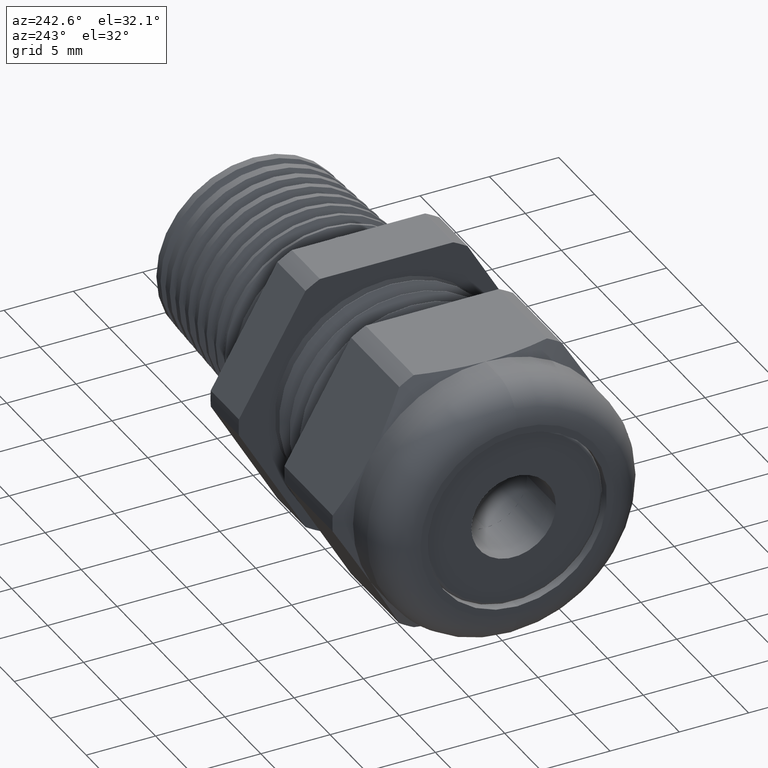
[diagram: clean part render]
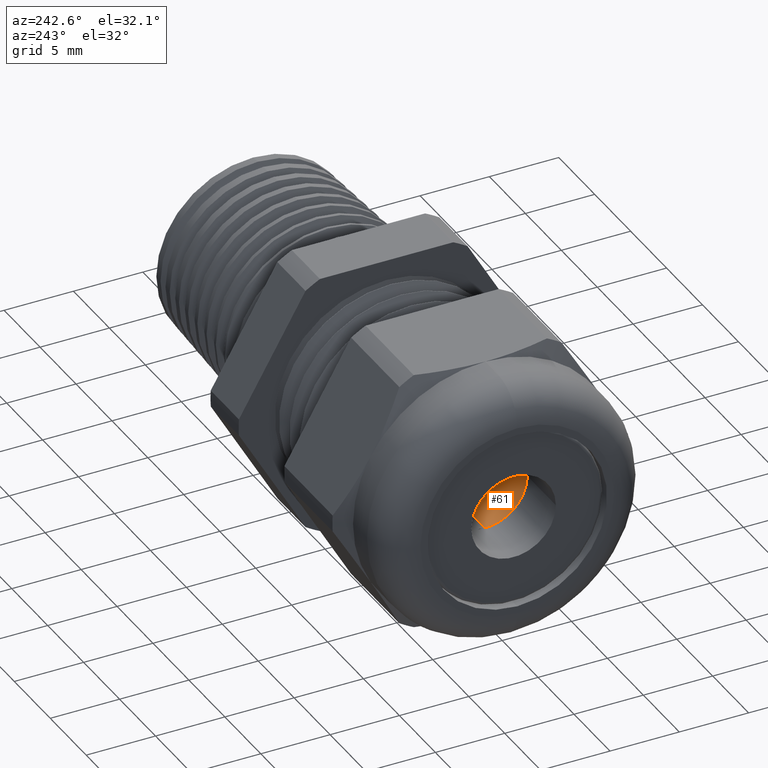
[diagram: same view with one face highlighted and labeled with its STEP entity id]
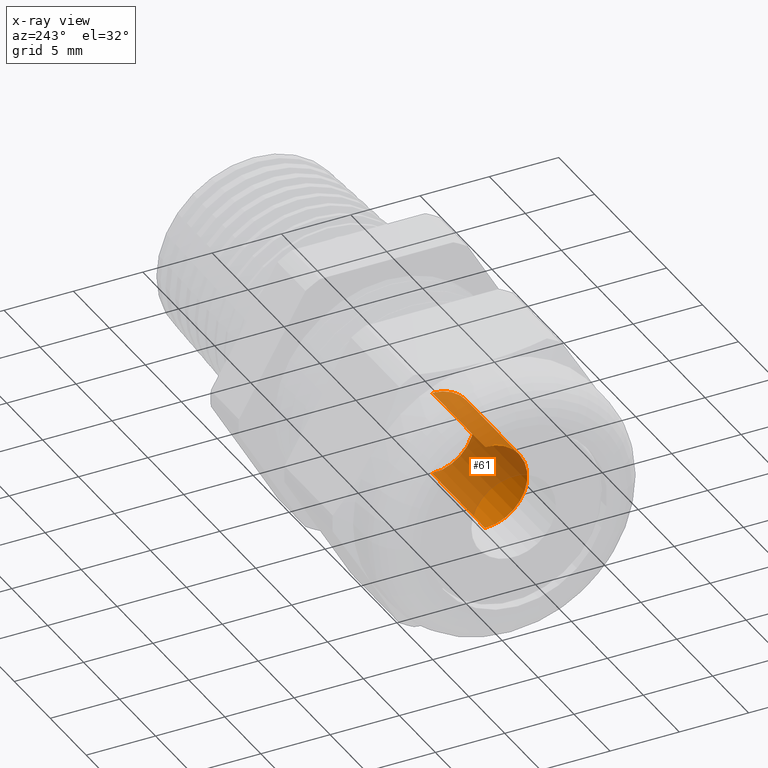
[diagram: x-ray of the same camera — body ghosted, the highlighted face saturated]
A machine part, auxiliary view. The second image highlights one B-rep face of the part: STEP entity #61.
The next image is the same camera in x-ray: the body ghosted, the highlighted face saturated — about 75% of this face is hidden behind the body in this view.
In plain terms, the highlighted cylindrical surface (partial cylindrical patch) has radius 3.048 mm, axis along (-1, -0, -0).
Its self-contained STEP definition (entity closure, byte-faithful):
#2 = ORIENTED_EDGE ( 'NONE', *, *, #29, .F. ) ;
#16 = ORIENTED_EDGE ( 'NONE', *, *, #17, .T. ) ;
#17 = EDGE_CURVE ( 'NONE', #57, #25, #1957, .T. ) ;
#24 = ORIENTED_EDGE ( 'NONE', *, *, #42, .F. ) ;
#25 = VERTEX_POINT ( 'NONE', #1980 ) ;
#29 = EDGE_CURVE ( 'NONE', #48, #69, #2021, .T. ) ;
#42 = EDGE_CURVE ( 'NONE', #57, #48, #2008, .T. ) ;
#48 = VERTEX_POINT ( 'NONE', #2019 ) ;
#57 = VERTEX_POINT ( 'NONE', #2035 ) ;
#61 = ADVANCED_FACE ( 'NONE', ( #2062 ), #2061, .F. ) ;
#67 = ORIENTED_EDGE ( 'NONE', *, *, #68, .T. ) ;
#68 = EDGE_CURVE ( 'NONE', #25, #69, #2065, .T. ) ;
#69 = VERTEX_POINT ( 'NONE', #2071 ) ;
#70 = EDGE_LOOP ( 'NONE', ( #24, #16, #67, #2 ) ) ;
#1875 = VECTOR ( 'NONE', #1876, 39.37007874015748100 ) ;
#1876 = DIRECTION ( 'NONE',  ( -1.000000000000000000, -0.0000000000000000000, -0.0000000000000000000 ) ) ;
#1957 = LINE ( 'NONE', #1966, #1875 ) ;
#1966 = CARTESIAN_POINT ( 'NONE',  ( -0.7238591030180623300, 1.469527624586852600E-017, -0.1200000000000000000 ) ) ;
#1980 = CARTESIAN_POINT ( 'NONE',  ( -0.6937499999999999800, 1.469527624586852600E-017, -0.1199999999999999800 ) ) ;
#1997 = DIRECTION ( 'NONE',  ( 0.0000000000000000000, 0.0000000000000000000, 1.000000000000000000 ) ) ;
#1998 = DIRECTION ( 'NONE',  ( -1.000000000000000000, -0.0000000000000000000, -0.0000000000000000000 ) ) ;
#1999 = CARTESIAN_POINT ( 'NONE',  ( -0.4037499999999999400, 0.0000000000000000000, 0.0000000000000000000 ) ) ;
#2008 = CIRCLE ( 'NONE', #2022, 0.1200000000000000200 ) ;
#2012 = VECTOR ( 'NONE', #2028, 39.37007874015748100 ) ;
#2019 = CARTESIAN_POINT ( 'NONE',  ( -0.4037499999999999400, 0.0000000000000000000, 0.1200000000000000200 ) ) ;
#2021 = LINE ( 'NONE', #2026, #2012 ) ;
#2022 = AXIS2_PLACEMENT_3D ( 'NONE', #1999, #1998, #1997 ) ;
#2026 = CARTESIAN_POINT ( 'NONE',  ( -0.7238591030180623300, 0.0000000000000000000, 0.1200000000000000000 ) ) ;
#2028 = DIRECTION ( 'NONE',  ( -1.000000000000000000, -0.0000000000000000000, -0.0000000000000000000 ) ) ;
#2035 = CARTESIAN_POINT ( 'NONE',  ( -0.4037499999999999400, 1.469527624586852900E-017, -0.1200000000000000400 ) ) ;
#2040 = DIRECTION ( 'NONE',  ( 0.0000000000000000000, 0.0000000000000000000, 1.000000000000000000 ) ) ;
#2042 = CARTESIAN_POINT ( 'NONE',  ( -0.7238591030180623300, 0.0000000000000000000, 0.0000000000000000000 ) ) ;
#2047 = DIRECTION ( 'NONE',  ( -1.000000000000000000, -0.0000000000000000000, -0.0000000000000000000 ) ) ;
#2048 = AXIS2_PLACEMENT_3D ( 'NONE', #2042, #2047, #2040 ) ;
#2061 = CYLINDRICAL_SURFACE ( 'NONE', #2048, 0.1200000000000000000 ) ;
#2062 = FACE_OUTER_BOUND ( 'NONE', #70, .T. ) ;
#2065 = CIRCLE ( 'NONE', #2066, 0.1199999999999999800 ) ;
#2066 = AXIS2_PLACEMENT_3D ( 'NONE', #2074, #2067, #2068 ) ;
#2067 = DIRECTION ( 'NONE',  ( -1.000000000000000000, -0.0000000000000000000, -0.0000000000000000000 ) ) ;
#2068 = DIRECTION ( 'NONE',  ( 0.0000000000000000000, 0.0000000000000000000, 1.000000000000000000 ) ) ;
#2071 = CARTESIAN_POINT ( 'NONE',  ( -0.6937499999999999800, 0.0000000000000000000, 0.1199999999999999800 ) ) ;
#2074 = CARTESIAN_POINT ( 'NONE',  ( -0.6937499999999999800, 0.0000000000000000000, 0.0000000000000000000 ) ) ;